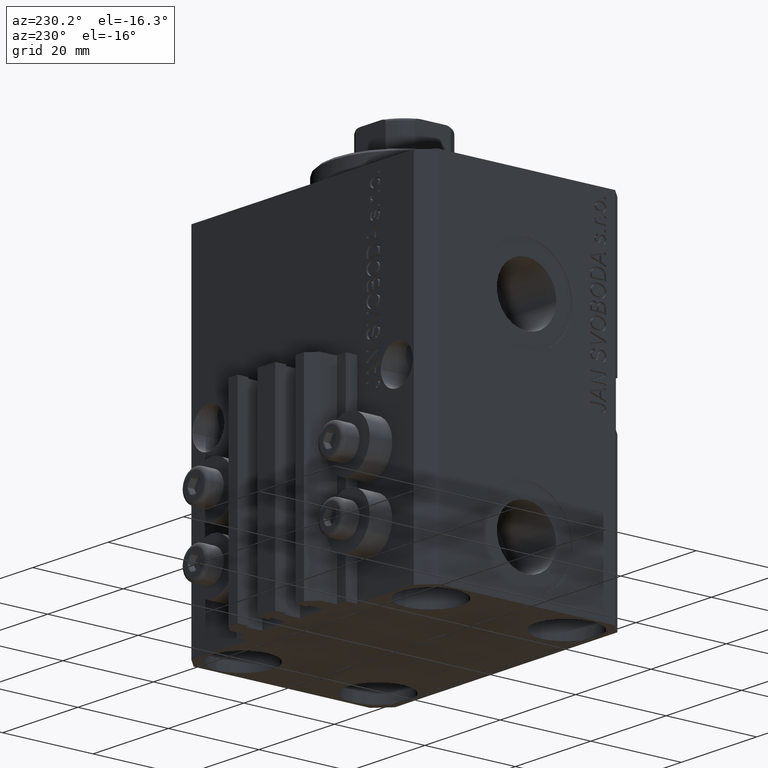
[diagram: clean part render]
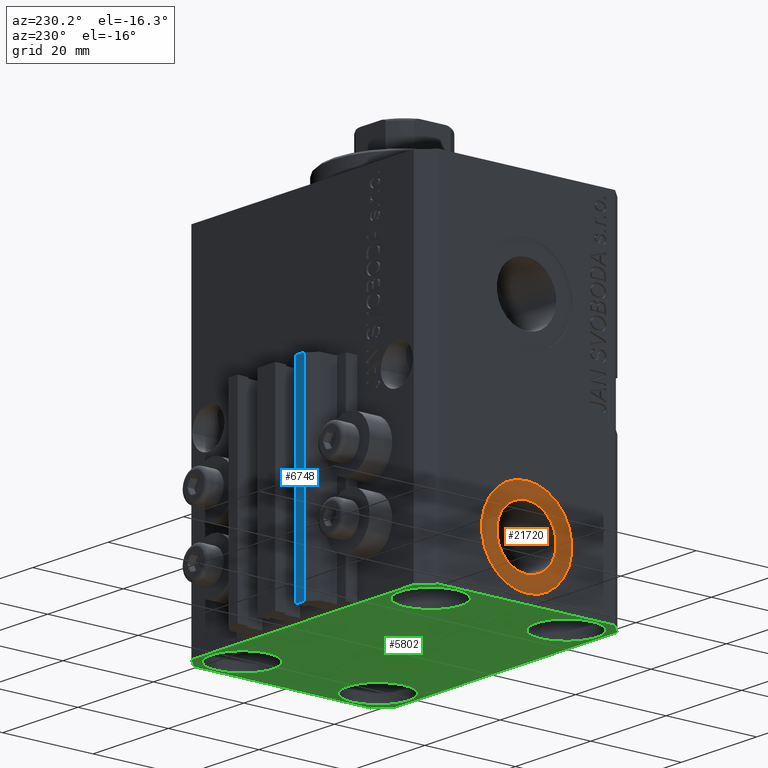
[diagram: same view with three faces highlighted in distinct colors, each labeled with its STEP entity id]
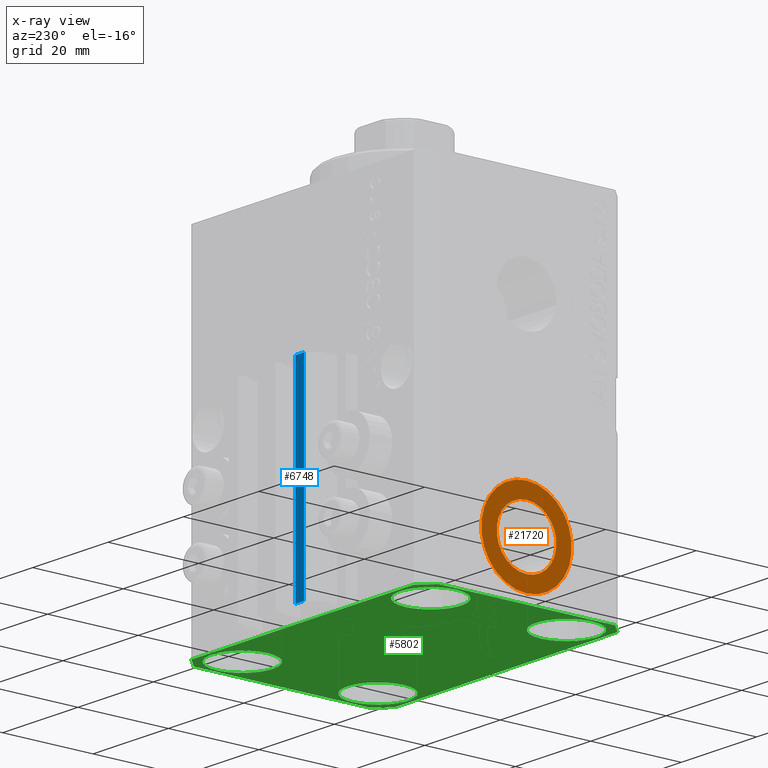
[diagram: x-ray of the same camera — body ghosted, the three highlighted faces saturated]
A machine part, auxiliary view with three faces highlighted in distinct colors.
The next image is the same camera in x-ray (body ghosted, the three faces saturated) — at least one of them is partly hidden behind the body in this view.
Their STEP definitions:

[orange] entity #21720 — the highlighted planar face has unit normal (-1, 0, 0).
#4515 = DIRECTION ( 'NONE',  ( 0.000000000000000000, 0.000000000000000000, 1.000000000000000000 ) ) ;
#5838 = EDGE_LOOP ( 'NONE', ( #35796, #31540 ) ) ;
#6878 = AXIS2_PLACEMENT_3D ( 'NONE', #31474, #20723, #12851 ) ;
#7202 = FACE_OUTER_BOUND ( 'NONE', #5838, .T. ) ;
#9343 = DIRECTION ( 'NONE',  ( -1.000000000000000000, 0.000000000000000000, 0.000000000000000000 ) ) ;
#11311 = DIRECTION ( 'NONE',  ( -1.000000000000000000, 0.000000000000000000, 0.000000000000000000 ) ) ;
#11722 = CIRCLE ( 'NONE', #21622, 6.580000000000002736 ) ;
#11788 = CARTESIAN_POINT ( 'NONE',  ( -32.39999999999650271, -6.938893903907228378E-15, -55.00000000000000711 ) ) ;
#11793 = CARTESIAN_POINT ( 'NONE',  ( -32.39999999999650271, -6.938893903907228378E-15, -65.00000000000000000 ) ) ;
#11911 = CARTESIAN_POINT ( 'NONE',  ( -32.39999999999650271, -6.938893903907228378E-15, -65.00000000000000000 ) ) ;
#12802 = EDGE_CURVE ( 'NONE', #42718, #31342, #44244, .T. ) ;
#12851 = DIRECTION ( 'NONE',  ( 0.000000000000000000, 0.000000000000000000, 1.000000000000000000 ) ) ;
#13839 = CARTESIAN_POINT ( 'NONE',  ( -32.39999999999650271, -6.938893903907228378E-15, -58.42000000000000171 ) ) ;
#14173 = EDGE_LOOP ( 'NONE', ( #40376, #24810 ) ) ;
#14512 = AXIS2_PLACEMENT_3D ( 'NONE', #28847, #9343, #23661 ) ;
#17458 = DIRECTION ( 'NONE',  ( -1.000000000000000000, 0.000000000000000000, 0.000000000000000000 ) ) ;
#18167 = PLANE ( 'NONE',  #42532 ) ;
#18475 = DIRECTION ( 'NONE',  ( 0.000000000000000000, 0.000000000000000000, 1.000000000000000000 ) ) ;
#20723 = DIRECTION ( 'NONE',  ( -1.000000000000000000, 0.000000000000000000, 0.000000000000000000 ) ) ;
#20805 = EDGE_CURVE ( 'NONE', #25151, #29701, #41720, .T. ) ;
#21152 = AXIS2_PLACEMENT_3D ( 'NONE', #11793, #11311, #18475 ) ;
#21622 = AXIS2_PLACEMENT_3D ( 'NONE', #11911, #41007, #4515 ) ;
#21720 = ADVANCED_FACE ( 'NONE', ( #32722, #7202 ), #18167, .T. ) ;
#21749 = CARTESIAN_POINT ( 'NONE',  ( -32.39999999999650271, -6.938893903907228378E-15, -65.00000000000000000 ) ) ;
#21978 = DIRECTION ( 'NONE',  ( 0.000000000000000000, 0.000000000000000000, 1.000000000000000000 ) ) ;
#23661 = DIRECTION ( 'NONE',  ( 0.000000000000000000, 0.000000000000000000, 1.000000000000000000 ) ) ;
#24810 = ORIENTED_EDGE ( 'NONE', *, *, #20805, .F. ) ;
#25151 = VERTEX_POINT ( 'NONE', #45205 ) ;
#25938 = CIRCLE ( 'NONE', #6878, 9.999999999999994671 ) ;
#26762 = CARTESIAN_POINT ( 'NONE',  ( -32.39999999999650271, -5.714247104759875318E-15, -75.00000000000000000 ) ) ;
#28847 = CARTESIAN_POINT ( 'NONE',  ( -32.39999999999650271, -6.938893903907228378E-15, -65.00000000000000000 ) ) ;
#29701 = VERTEX_POINT ( 'NONE', #13839 ) ;
#31342 = VERTEX_POINT ( 'NONE', #26762 ) ;
#31474 = CARTESIAN_POINT ( 'NONE',  ( -32.39999999999650271, -6.938893903907228378E-15, -65.00000000000000000 ) ) ;
#31540 = ORIENTED_EDGE ( 'NONE', *, *, #45836, .T. ) ;
#32722 = FACE_BOUND ( 'NONE', #14173, .T. ) ;
#35796 = ORIENTED_EDGE ( 'NONE', *, *, #12802, .T. ) ;
#39926 = EDGE_CURVE ( 'NONE', #29701, #25151, #11722, .T. ) ;
#40376 = ORIENTED_EDGE ( 'NONE', *, *, #39926, .F. ) ;
#41007 = DIRECTION ( 'NONE',  ( -1.000000000000000000, 0.000000000000000000, 0.000000000000000000 ) ) ;
#41720 = CIRCLE ( 'NONE', #21152, 6.580000000000002736 ) ;
#42532 = AXIS2_PLACEMENT_3D ( 'NONE', #21749, #17458, #21978 ) ;
#42718 = VERTEX_POINT ( 'NONE', #11788 ) ;
#44244 = CIRCLE ( 'NONE', #14512, 9.999999999999994671 ) ;
#45205 = CARTESIAN_POINT ( 'NONE',  ( -32.39999999999650271, -6.133076310068269336E-15, -71.57999999999999829 ) ) ;
#45836 = EDGE_CURVE ( 'NONE', #31342, #42718, #25938, .T. ) ;

[blue] entity #6748 — the highlighted planar face has unit normal (0, 1, 0).
#342 = EDGE_CURVE ( 'NONE', #8586, #39143, #10433, .T. ) ;
#386 = DIRECTION ( 'NONE',  ( 1.476360405086644852E-15, 1.000000000000000000, -0.000000000000000000 ) ) ;
#859 = DIRECTION ( 'NONE',  ( -1.000000000000000000, 1.476360405086644852E-15, 0.000000000000000000 ) ) ;
#3423 = VECTOR ( 'NONE', #31088, 1000.000000000000000 ) ;
#3558 = LINE ( 'NONE', #32659, #24433 ) ;
#3684 = CARTESIAN_POINT ( 'NONE',  ( -10.00000000000000000, 30.49999999999948841, -33.00000000000000000 ) ) ;
#6748 = ADVANCED_FACE ( 'NONE', ( #18283 ), #7792, .T. ) ;
#7792 = PLANE ( 'NONE',  #41152 ) ;
#8586 = VERTEX_POINT ( 'NONE', #23512 ) ;
#8684 = DIRECTION ( 'NONE',  ( 0.000000000000000000, 0.000000000000000000, 1.000000000000000000 ) ) ;
#10433 = LINE ( 'NONE', #40006, #33320 ) ;
#10761 = ORIENTED_EDGE ( 'NONE', *, *, #30080, .F. ) ;
#12024 = CARTESIAN_POINT ( 'NONE',  ( -7.650000000000000355, 30.49999999999948486, -77.00000000000000000 ) ) ;
#15915 = CARTESIAN_POINT ( 'NONE',  ( -7.650000000000000355, 30.49999999999948486, -77.00000000000000000 ) ) ;
#17904 = ORIENTED_EDGE ( 'NONE', *, *, #42817, .T. ) ;
#18283 = FACE_OUTER_BOUND ( 'NONE', #22290, .T. ) ;
#22290 = EDGE_LOOP ( 'NONE', ( #26703, #10761, #17904, #35647 ) ) ;
#23512 = CARTESIAN_POINT ( 'NONE',  ( -7.650000000000000355, 30.49999999999948486, -33.00000000000000000 ) ) ;
#23727 = CARTESIAN_POINT ( 'NONE',  ( -10.00000000000000000, 30.49999999999948841, -77.00000000000000000 ) ) ;
#23924 = CARTESIAN_POINT ( 'NONE',  ( -7.650000000000000355, 30.49999999999948486, -77.00000000000000000 ) ) ;
#24433 = VECTOR ( 'NONE', #47199, 1000.000000000000000 ) ;
#26435 = VERTEX_POINT ( 'NONE', #15915 ) ;
#26703 = ORIENTED_EDGE ( 'NONE', *, *, #342, .F. ) ;
#30080 = EDGE_CURVE ( 'NONE', #26435, #8586, #41123, .T. ) ;
#31088 = DIRECTION ( 'NONE',  ( -1.000000000000000000, 1.476360405086644852E-15, 0.000000000000000000 ) ) ;
#32659 = CARTESIAN_POINT ( 'NONE',  ( -10.00000000000000000, 30.49999999999948841, -77.00000000000000000 ) ) ;
#33320 = VECTOR ( 'NONE', #39528, 1000.000000000000000 ) ;
#33544 = CARTESIAN_POINT ( 'NONE',  ( -7.650000000000000355, 30.49999999999948486, -77.00000000000000000 ) ) ;
#35647 = ORIENTED_EDGE ( 'NONE', *, *, #47122, .T. ) ;
#36911 = VERTEX_POINT ( 'NONE', #23727 ) ;
#39143 = VERTEX_POINT ( 'NONE', #3684 ) ;
#39528 = DIRECTION ( 'NONE',  ( -1.000000000000000000, 1.476360405086644852E-15, 0.000000000000000000 ) ) ;
#40006 = CARTESIAN_POINT ( 'NONE',  ( -7.650000000000000355, 30.49999999999948486, -33.00000000000000000 ) ) ;
#41123 = LINE ( 'NONE', #12024, #43441 ) ;
#41152 = AXIS2_PLACEMENT_3D ( 'NONE', #33544, #386, #859 ) ;
#42817 = EDGE_CURVE ( 'NONE', #26435, #36911, #45856, .T. ) ;
#43441 = VECTOR ( 'NONE', #8684, 1000.000000000000000 ) ;
#45856 = LINE ( 'NONE', #23924, #3423 ) ;
#47122 = EDGE_CURVE ( 'NONE', #36911, #39143, #3558, .T. ) ;
#47199 = DIRECTION ( 'NONE',  ( 0.000000000000000000, 0.000000000000000000, 1.000000000000000000 ) ) ;

[green] entity #5802 — the highlighted planar face has unit normal (0, 0, 1).
#1634 = CARTESIAN_POINT ( 'NONE',  ( 32.49999999999702993, 19.49999999999945999, -77.00000000000000000 ) ) ;
#1918 = ORIENTED_EDGE ( 'NONE', *, *, #11278, .T. ) ;
#2108 = DIRECTION ( 'NONE',  ( -0.000000000000000000, -0.000000000000000000, 1.000000000000000000 ) ) ;
#2343 = DIRECTION ( 'NONE',  ( -0.000000000000000000, -0.000000000000000000, 1.000000000000000000 ) ) ;
#2434 = DIRECTION ( 'NONE',  ( -1.000000000000000000, -2.352167425053553784E-16, 0.000000000000000000 ) ) ;
#3344 = CARTESIAN_POINT ( 'NONE',  ( 31.74999999997746869, -15.00000000000000000, -77.00000000000000000 ) ) ;
#3797 = CARTESIAN_POINT ( 'NONE',  ( -29.49999999999650413, 22.49999999999949907, -77.00000000000000000 ) ) ;
#3846 = DIRECTION ( 'NONE',  ( -0.000000000000000000, -0.000000000000000000, 1.000000000000000000 ) ) ;
#3981 = CARTESIAN_POINT ( 'NONE',  ( 31.74999999995845101, 15.00000000000000888, -77.00000000000000000 ) ) ;
#4371 = CARTESIAN_POINT ( 'NONE',  ( -25.00000000000000355, -15.00000000000000000, -77.00000000000000000 ) ) ;
#4725 = VERTEX_POINT ( 'NONE', #17332 ) ;
#5227 = EDGE_CURVE ( 'NONE', #28874, #45054, #34176, .T. ) ;
#5592 = CARTESIAN_POINT ( 'NONE',  ( 18.25000000002253842, -15.00000000000000000, -77.00000000000000000 ) ) ;
#5686 = LINE ( 'NONE', #1634, #41785 ) ;
#5722 = EDGE_CURVE ( 'NONE', #45054, #13028, #16172, .T. ) ;
#5802 = ADVANCED_FACE ( 'NONE', ( #18737, #8016, #25896, #25428, #43790 ), #11113, .F. ) ;
#6482 = DIRECTION ( 'NONE',  ( -0.000000000000000000, -0.000000000000000000, 1.000000000000000000 ) ) ;
#7139 = CARTESIAN_POINT ( 'NONE',  ( 32.49999999999702993, 19.49999999999945999, -77.00000000000000000 ) ) ;
#7425 = DIRECTION ( 'NONE',  ( 0.7071067811865483499, 0.7071067811865466846, 0.000000000000000000 ) ) ;
#7631 = ORIENTED_EDGE ( 'NONE', *, *, #25638, .T. ) ;
#7821 = EDGE_CURVE ( 'NONE', #29758, #19726, #41349, .T. ) ;
#8016 = FACE_BOUND ( 'NONE', #11821, .T. ) ;
#8177 = ORIENTED_EDGE ( 'NONE', *, *, #23021, .F. ) ;
#10218 = CARTESIAN_POINT ( 'NONE',  ( -25.00000000000000355, -15.00000000000000000, -77.00000000000000000 ) ) ;
#10374 = ORIENTED_EDGE ( 'NONE', *, *, #5227, .F. ) ;
#11005 = CARTESIAN_POINT ( 'NONE',  ( 24.99999999999999645, 15.00000000000000888, -77.00000000000000000 ) ) ;
#11113 = PLANE ( 'NONE',  #35769 ) ;
#11142 = CIRCLE ( 'NONE', #32501, 6.750000000041541881 ) ;
#11278 = EDGE_CURVE ( 'NONE', #26648, #30619, #36581, .T. ) ;
#11477 = DIRECTION ( 'NONE',  ( 1.000000000000000000, 0.000000000000000000, 0.000000000000000000 ) ) ;
#11821 = EDGE_LOOP ( 'NONE', ( #1918, #33086 ) ) ;
#12126 = DIRECTION ( 'NONE',  ( 1.334402673828349134E-14, 1.000000000000000000, 0.000000000000000000 ) ) ;
#12534 = AXIS2_PLACEMENT_3D ( 'NONE', #27948, #6482, #35816 ) ;
#12942 = DIRECTION ( 'NONE',  ( -0.000000000000000000, -0.000000000000000000, 1.000000000000000000 ) ) ;
#13028 = VERTEX_POINT ( 'NONE', #24124 ) ;
#13086 = DIRECTION ( 'NONE',  ( 1.000000000000000000, 0.000000000000000000, 0.000000000000000000 ) ) ;
#14419 = ORIENTED_EDGE ( 'NONE', *, *, #17228, .T. ) ;
#14538 = EDGE_CURVE ( 'NONE', #4725, #34399, #24592, .T. ) ;
#14673 = EDGE_CURVE ( 'NONE', #13028, #16724, #22216, .T. ) ;
#14998 = CARTESIAN_POINT ( 'NONE',  ( -32.49999999999650413, 19.49999999999949907, -77.00000000000000000 ) ) ;
#15067 = CARTESIAN_POINT ( 'NONE',  ( -31.75000000002253842, 15.00000000000000000, -77.00000000000000000 ) ) ;
#15153 = VERTEX_POINT ( 'NONE', #20448 ) ;
#15226 = CIRCLE ( 'NONE', #18295, 6.749999999958452790 ) ;
#15363 = EDGE_LOOP ( 'NONE', ( #33283, #8177, #21969, #25769, #30314, #10374, #32915, #45825 ) ) ;
#16172 = LINE ( 'NONE', #23324, #16731 ) ;
#16296 = CARTESIAN_POINT ( 'NONE',  ( -25.00000000000000355, 15.00000000000000000, -77.00000000000000000 ) ) ;
#16375 = VERTEX_POINT ( 'NONE', #3981 ) ;
#16724 = VERTEX_POINT ( 'NONE', #39419 ) ;
#16731 = VECTOR ( 'NONE', #45259, 1000.000000000000000 ) ;
#16753 = CIRCLE ( 'NONE', #44164, 6.750000000022533087 ) ;
#17228 = EDGE_CURVE ( 'NONE', #34399, #4725, #11142, .T. ) ;
#17267 = CIRCLE ( 'NONE', #43935, 6.750000000022533087 ) ;
#17289 = CARTESIAN_POINT ( 'NONE',  ( -31.75000000004154899, -15.00000000000000000, -77.00000000000000000 ) ) ;
#17332 = CARTESIAN_POINT ( 'NONE',  ( -18.24999999995845812, -15.00000000000000000, -77.00000000000000000 ) ) ;
#17781 = DIRECTION ( 'NONE',  ( 1.000000000000000000, 0.000000000000000000, 0.000000000000000000 ) ) ;
#17888 = VERTEX_POINT ( 'NONE', #36039 ) ;
#17960 = VECTOR ( 'NONE', #7425, 1000.000000000000000 ) ;
#18012 = DIRECTION ( 'NONE',  ( -0.000000000000000000, -0.000000000000000000, 1.000000000000000000 ) ) ;
#18271 = CARTESIAN_POINT ( 'NONE',  ( 0.000000000000000000, 0.000000000000000000, -77.00000000000000000 ) ) ;
#18295 = AXIS2_PLACEMENT_3D ( 'NONE', #11005, #3846, #29371 ) ;
#18297 = VECTOR ( 'NONE', #30388, 1000.000000000000114 ) ;
#18630 = CARTESIAN_POINT ( 'NONE',  ( 29.49999999999650413, -22.49999999999949196, -77.00000000000000000 ) ) ;
#18737 = FACE_BOUND ( 'NONE', #46266, .T. ) ;
#18787 = EDGE_CURVE ( 'NONE', #20589, #29758, #41797, .T. ) ;
#18911 = EDGE_CURVE ( 'NONE', #17888, #43596, #17267, .T. ) ;
#19480 = CARTESIAN_POINT ( 'NONE',  ( 29.49999999999707967, 22.49999999999951328, -77.00000000000000000 ) ) ;
#19726 = VERTEX_POINT ( 'NONE', #39451 ) ;
#19881 = CARTESIAN_POINT ( 'NONE',  ( -29.49999999999650413, 22.49999999999949907, -77.00000000000000000 ) ) ;
#20448 = CARTESIAN_POINT ( 'NONE',  ( 18.25000000004154543, 15.00000000000000888, -77.00000000000000000 ) ) ;
#20589 = VERTEX_POINT ( 'NONE', #19480 ) ;
#21969 = ORIENTED_EDGE ( 'NONE', *, *, #33097, .F. ) ;
#22216 = LINE ( 'NONE', #18630, #17960 ) ;
#23021 = EDGE_CURVE ( 'NONE', #33000, #20589, #5686, .T. ) ;
#23324 = CARTESIAN_POINT ( 'NONE',  ( -29.49999999999650413, -22.49999999999949907, -77.00000000000000000 ) ) ;
#23351 = DIRECTION ( 'NONE',  ( 1.000000000000000000, 0.000000000000000000, 0.000000000000000000 ) ) ;
#23697 = EDGE_LOOP ( 'NONE', ( #7631, #27920 ) ) ;
#24124 = CARTESIAN_POINT ( 'NONE',  ( 29.49999999999650413, -22.49999999999949196, -77.00000000000000000 ) ) ;
#24375 = CARTESIAN_POINT ( 'NONE',  ( 29.49999999999707967, 22.49999999999951328, -77.00000000000000000 ) ) ;
#24592 = CIRCLE ( 'NONE', #34378, 6.750000000041541881 ) ;
#25168 = CARTESIAN_POINT ( 'NONE',  ( 25.00000000000000355, -15.00000000000000000, -77.00000000000000000 ) ) ;
#25428 = FACE_BOUND ( 'NONE', #39969, .T. ) ;
#25469 = CIRCLE ( 'NONE', #12534, 6.749999999958452790 ) ;
#25504 = DIRECTION ( 'NONE',  ( 0.000000000000000000, -1.000000000000000000, 0.000000000000000000 ) ) ;
#25542 = CARTESIAN_POINT ( 'NONE',  ( -32.49999999999650413, -19.49999999999949907, -77.00000000000000000 ) ) ;
#25638 = EDGE_CURVE ( 'NONE', #15153, #16375, #15226, .T. ) ;
#25769 = ORIENTED_EDGE ( 'NONE', *, *, #14673, .F. ) ;
#25896 = FACE_BOUND ( 'NONE', #23697, .T. ) ;
#26026 = CARTESIAN_POINT ( 'NONE',  ( -25.00000000000000355, 15.00000000000000000, -77.00000000000000000 ) ) ;
#26259 = CARTESIAN_POINT ( 'NONE',  ( -32.49999999999650413, -19.49999999999949907, -77.00000000000000000 ) ) ;
#26432 = CARTESIAN_POINT ( 'NONE',  ( 32.49999999999651124, -19.49999999999949196, -77.00000000000000000 ) ) ;
#26648 = VERTEX_POINT ( 'NONE', #5592 ) ;
#27920 = ORIENTED_EDGE ( 'NONE', *, *, #40719, .T. ) ;
#27948 = CARTESIAN_POINT ( 'NONE',  ( 24.99999999999999645, 15.00000000000000888, -77.00000000000000000 ) ) ;
#28429 = VECTOR ( 'NONE', #25504, 1000.000000000000000 ) ;
#28705 = VECTOR ( 'NONE', #2434, 1000.000000000000000 ) ;
#28874 = VERTEX_POINT ( 'NONE', #26259 ) ;
#29371 = DIRECTION ( 'NONE',  ( 1.000000000000000000, 0.000000000000000000, 0.000000000000000000 ) ) ;
#29372 = EDGE_CURVE ( 'NONE', #43596, #17888, #16753, .T. ) ;
#29748 = AXIS2_PLACEMENT_3D ( 'NONE', #25168, #18012, #17781 ) ;
#29758 = VERTEX_POINT ( 'NONE', #3797 ) ;
#30265 = LINE ( 'NONE', #26432, #45796 ) ;
#30314 = ORIENTED_EDGE ( 'NONE', *, *, #5722, .F. ) ;
#30388 = DIRECTION ( 'NONE',  ( -0.7071067811865474617, -0.7071067811865474617, 0.000000000000000000 ) ) ;
#30619 = VERTEX_POINT ( 'NONE', #3344 ) ;
#30893 = EDGE_CURVE ( 'NONE', #30619, #26648, #34297, .T. ) ;
#31075 = DIRECTION ( 'NONE',  ( 1.000000000000000000, 0.000000000000000000, 0.000000000000000000 ) ) ;
#32501 = AXIS2_PLACEMENT_3D ( 'NONE', #10218, #2108, #13086 ) ;
#32807 = AXIS2_PLACEMENT_3D ( 'NONE', #35018, #2343, #23351 ) ;
#32904 = LINE ( 'NONE', #14998, #28429 ) ;
#32915 = ORIENTED_EDGE ( 'NONE', *, *, #42000, .F. ) ;
#33000 = VERTEX_POINT ( 'NONE', #7139 ) ;
#33086 = ORIENTED_EDGE ( 'NONE', *, *, #30893, .T. ) ;
#33097 = EDGE_CURVE ( 'NONE', #16724, #33000, #30265, .T. ) ;
#33283 = ORIENTED_EDGE ( 'NONE', *, *, #18787, .F. ) ;
#33296 = DIRECTION ( 'NONE',  ( 1.000000000000000000, 0.000000000000000000, -0.000000000000000000 ) ) ;
#33475 = DIRECTION ( 'NONE',  ( -0.000000000000000000, -0.000000000000000000, 1.000000000000000000 ) ) ;
#34176 = LINE ( 'NONE', #25542, #34211 ) ;
#34211 = VECTOR ( 'NONE', #42965, 1000.000000000000114 ) ;
#34297 = CIRCLE ( 'NONE', #32807, 6.749999999977465137 ) ;
#34378 = AXIS2_PLACEMENT_3D ( 'NONE', #4371, #33475, #31075 ) ;
#34399 = VERTEX_POINT ( 'NONE', #17289 ) ;
#34878 = DIRECTION ( 'NONE',  ( 1.000000000000000000, 0.000000000000000000, 0.000000000000000000 ) ) ;
#35018 = CARTESIAN_POINT ( 'NONE',  ( 25.00000000000000355, -15.00000000000000000, -77.00000000000000000 ) ) ;
#35398 = ORIENTED_EDGE ( 'NONE', *, *, #29372, .T. ) ;
#35769 = AXIS2_PLACEMENT_3D ( 'NONE', #18271, #40919, #33296 ) ;
#35816 = DIRECTION ( 'NONE',  ( 1.000000000000000000, 0.000000000000000000, 0.000000000000000000 ) ) ;
#36039 = CARTESIAN_POINT ( 'NONE',  ( -18.24999999997747224, 15.00000000000000000, -77.00000000000000000 ) ) ;
#36581 = CIRCLE ( 'NONE', #29748, 6.749999999977465137 ) ;
#37710 = DIRECTION ( 'NONE',  ( -0.000000000000000000, -0.000000000000000000, 1.000000000000000000 ) ) ;
#37912 = ORIENTED_EDGE ( 'NONE', *, *, #18911, .T. ) ;
#38834 = DIRECTION ( 'NONE',  ( -0.7071067811865352493, 0.7071067811865597852, 0.000000000000000000 ) ) ;
#39419 = CARTESIAN_POINT ( 'NONE',  ( 32.49999999999651124, -19.49999999999949196, -77.00000000000000000 ) ) ;
#39451 = CARTESIAN_POINT ( 'NONE',  ( -32.49999999999650413, 19.49999999999949907, -77.00000000000000000 ) ) ;
#39969 = EDGE_LOOP ( 'NONE', ( #35398, #37912 ) ) ;
#40719 = EDGE_CURVE ( 'NONE', #16375, #15153, #25469, .T. ) ;
#40799 = ORIENTED_EDGE ( 'NONE', *, *, #14538, .T. ) ;
#40919 = DIRECTION ( 'NONE',  ( 0.000000000000000000, 0.000000000000000000, 1.000000000000000000 ) ) ;
#41349 = LINE ( 'NONE', #19881, #18297 ) ;
#41785 = VECTOR ( 'NONE', #38834, 1000.000000000000000 ) ;
#41797 = LINE ( 'NONE', #24375, #28705 ) ;
#42000 = EDGE_CURVE ( 'NONE', #19726, #28874, #32904, .T. ) ;
#42965 = DIRECTION ( 'NONE',  ( 0.7071067811865474617, -0.7071067811865474617, 0.000000000000000000 ) ) ;
#43594 = CARTESIAN_POINT ( 'NONE',  ( -29.49999999999650413, -22.49999999999949907, -77.00000000000000000 ) ) ;
#43596 = VERTEX_POINT ( 'NONE', #15067 ) ;
#43790 = FACE_OUTER_BOUND ( 'NONE', #15363, .T. ) ;
#43935 = AXIS2_PLACEMENT_3D ( 'NONE', #26026, #37710, #11477 ) ;
#44164 = AXIS2_PLACEMENT_3D ( 'NONE', #16296, #12942, #34878 ) ;
#45054 = VERTEX_POINT ( 'NONE', #43594 ) ;
#45259 = DIRECTION ( 'NONE',  ( 1.000000000000000000, 1.176083712526788232E-16, 0.000000000000000000 ) ) ;
#45796 = VECTOR ( 'NONE', #12126, 1000.000000000000000 ) ;
#45825 = ORIENTED_EDGE ( 'NONE', *, *, #7821, .F. ) ;
#46266 = EDGE_LOOP ( 'NONE', ( #14419, #40799 ) ) ;